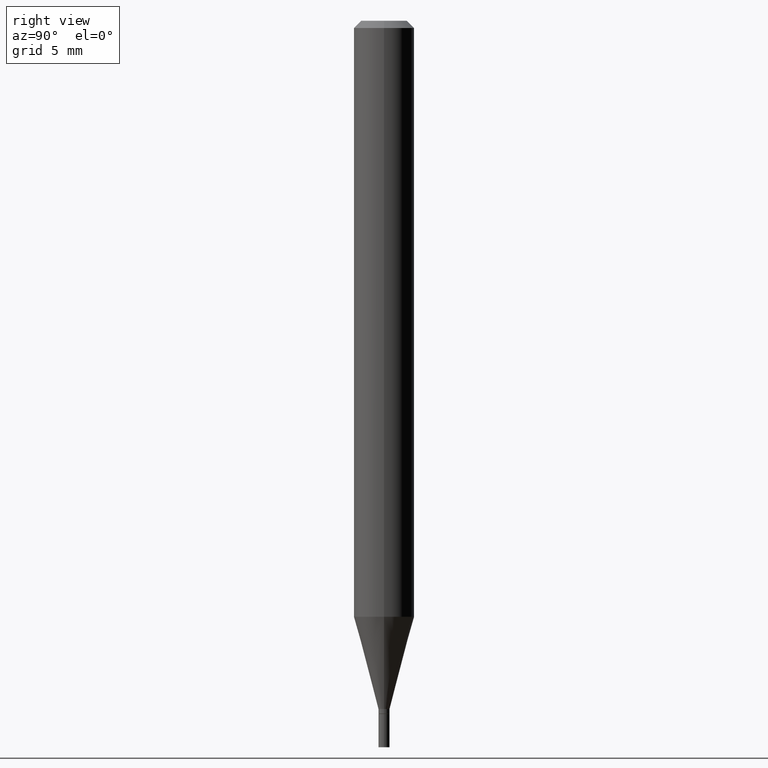
[diagram: clean part render]
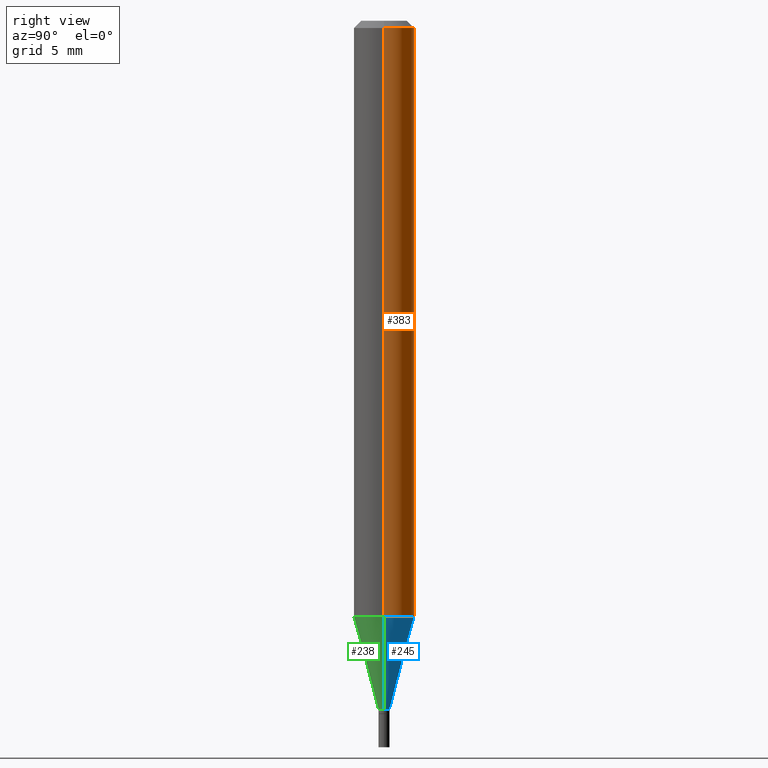
[diagram: same view with three faces highlighted in distinct colors, each labeled with its STEP entity id]
A machine part, right view with three faces highlighted in distinct colors.
Their STEP definitions:

[orange] entity #383 — the highlighted cylindrical surface (edge-blend (fillet) strip) has radius 1.5875 mm, axis along (-0, 0, 1).
#30 = CARTESIAN_POINT ( 'NONE',  ( 3.668203209277705088E-31, -5.237222008264718399E-17, -0.01499999999999999944 ) ) ;
#64 = DIRECTION ( 'NONE',  ( -2.445468806185136597E-29, 3.491481338843145583E-15, 1.000000000000000000 ) ) ;
#72 = CARTESIAN_POINT ( 'NONE',  ( 0.06249999999999997918, -4.733280476589200707E-15, -1.230665408813987893 ) ) ;
#78 = EDGE_CURVE ( 'NONE', #253, #317, #281, .T. ) ;
#82 = EDGE_CURVE ( 'NONE', #317, #109, #379, .T. ) ;
#98 = ORIENTED_EDGE ( 'NONE', *, *, #101, .F. ) ;
#101 = EDGE_CURVE ( 'NONE', #253, #363, #414, .T. ) ;
#109 = VERTEX_POINT ( 'NONE', #419 ) ;
#117 = AXIS2_PLACEMENT_3D ( 'NONE', #187, #336, #378 ) ;
#118 = CIRCLE ( 'NONE', #344, 0.06250000000000000000 ) ;
#128 = CARTESIAN_POINT ( 'NONE',  ( 0.06250000000000000000, -4.364351673553916694E-16, 3.047610484872459871E-30 ) ) ;
#140 = VECTOR ( 'NONE', #313, 39.37007874015748143 ) ;
#141 = CARTESIAN_POINT ( 'NONE',  ( -0.06249999999999997918, -3.852756099383747210E-15, -1.230665408813987893 ) ) ;
#149 = CARTESIAN_POINT ( 'NONE',  ( 0.06250000000000000000, -4.888073874380388472E-16, -0.01499999999999999944 ) ) ;
#160 = DIRECTION ( 'NONE',  ( 1.000000000000000000, -6.982962677686266711E-15, 4.876176775795935793E-29 ) ) ;
#171 = ORIENTED_EDGE ( 'NONE', *, *, #82, .T. ) ;
#176 = DIRECTION ( 'NONE',  ( 1.000000000000000000, -6.982962677686266711E-15, 0.000000000000000000 ) ) ;
#187 = CARTESIAN_POINT ( 'NONE',  ( 3.009553868105685827E-29, -4.296845309233809826E-15, -1.230665408813987893 ) ) ;
#204 = ORIENTED_EDGE ( 'NONE', *, *, #298, .F. ) ;
#242 = CYLINDRICAL_SURFACE ( 'NONE', #412, 0.06250000000000000000 ) ;
#253 = VERTEX_POINT ( 'NONE', #72 ) ;
#281 = CIRCLE ( 'NONE', #117, 0.06250000000000000000 ) ;
#298 = EDGE_CURVE ( 'NONE', #363, #109, #118, .T. ) ;
#306 = CARTESIAN_POINT ( 'NONE',  ( 0.000000000000000000, 0.000000000000000000, 0.000000000000000000 ) ) ;
#313 = DIRECTION ( 'NONE',  ( -2.445468806185136877E-29, 3.491481338843145188E-15, 1.000000000000000000 ) ) ;
#317 = VERTEX_POINT ( 'NONE', #141 ) ;
#336 = DIRECTION ( 'NONE',  ( -2.445468806185136597E-29, 3.491481338843145583E-15, 1.000000000000000000 ) ) ;
#341 = VECTOR ( 'NONE', #381, 39.37007874015748143 ) ;
#344 = AXIS2_PLACEMENT_3D ( 'NONE', #30, #64, #176 ) ;
#350 = FACE_OUTER_BOUND ( 'NONE', #426, .T. ) ;
#363 = VERTEX_POINT ( 'NONE', #149 ) ;
#377 = DIRECTION ( 'NONE',  ( -2.445468806185136597E-29, 3.491481338843145583E-15, 1.000000000000000000 ) ) ;
#378 = DIRECTION ( 'NONE',  ( 1.000000000000000000, -6.982962677686262766E-15, 0.000000000000000000 ) ) ;
#379 = LINE ( 'NONE', #446, #140 ) ;
#381 = DIRECTION ( 'NONE',  ( -2.445468806185136877E-29, 3.491481338843145188E-15, 1.000000000000000000 ) ) ;
#383 = ADVANCED_FACE ( 'NONE', ( #350 ), #242, .T. ) ;
#412 = AXIS2_PLACEMENT_3D ( 'NONE', #306, #377, #160 ) ;
#414 = LINE ( 'NONE', #128, #341 ) ;
#419 = CARTESIAN_POINT ( 'NONE',  ( -0.06250000000000000000, -1.730519554808165837E-15, -0.01499999999999999944 ) ) ;
#426 = EDGE_LOOP ( 'NONE', ( #465, #171, #204, #98 ) ) ;
#446 = CARTESIAN_POINT ( 'NONE',  ( -0.06250000000000000000, 4.440892098500626162E-16, -3.074334431409316114E-30 ) ) ;
#465 = ORIENTED_EDGE ( 'NONE', *, *, #78, .T. ) ;

[blue] entity #245 — the highlighted conical surface has half-angle 15 deg.
#5 = EDGE_LOOP ( 'NONE', ( #283, #289, #29, #328 ) ) ;
#8 = LINE ( 'NONE', #223, #38 ) ;
#29 = ORIENTED_EDGE ( 'NONE', *, *, #78, .F. ) ;
#35 = CARTESIAN_POINT ( 'NONE',  ( -0.01149999999999992001, -4.366219333633723973E-15, -1.421000000000000263 ) ) ;
#38 = VECTOR ( 'NONE', #81, 39.37007874015748143 ) ;
#47 = EDGE_CURVE ( 'NONE', #65, #253, #8, .T. ) ;
#54 = DIRECTION ( 'NONE',  ( -0.2588190451025216277, 5.211531920934551831E-15, 0.9659258262890679791 ) ) ;
#65 = VERTEX_POINT ( 'NONE', #371 ) ;
#72 = CARTESIAN_POINT ( 'NONE',  ( 0.06249999999999997918, -4.733280476589200707E-15, -1.230665408813987893 ) ) ;
#78 = EDGE_CURVE ( 'NONE', #253, #317, #281, .T. ) ;
#81 = DIRECTION ( 'NONE',  ( 0.2588190451025216277, 1.565188264969619995E-15, 0.9659258262890679791 ) ) ;
#89 = LINE ( 'NONE', #235, #105 ) ;
#105 = VECTOR ( 'NONE', #54, 39.37007874015748143 ) ;
#117 = AXIS2_PLACEMENT_3D ( 'NONE', #187, #336, #378 ) ;
#124 = CIRCLE ( 'NONE', #392, 0.01149999999999992001 ) ;
#141 = CARTESIAN_POINT ( 'NONE',  ( -0.06249999999999997918, -3.852756099383747210E-15, -1.230665408813987893 ) ) ;
#142 = CONICAL_SURFACE ( 'NONE', #244, 0.01149999999999992001, 0.2617993877991502960 ) ;
#187 = CARTESIAN_POINT ( 'NONE',  ( 3.009553868105685827E-29, -4.296845309233809826E-15, -1.230665408813987893 ) ) ;
#206 = EDGE_CURVE ( 'NONE', #65, #222, #124, .T. ) ;
#209 = DIRECTION ( 'NONE',  ( -2.445468806185136597E-29, 3.491481338843145583E-15, 1.000000000000000000 ) ) ;
#221 = DIRECTION ( 'NONE',  ( 1.000000000000000000, -6.982962677686254878E-15, 0.000000000000000000 ) ) ;
#222 = VERTEX_POINT ( 'NONE', #35 ) ;
#223 = CARTESIAN_POINT ( 'NONE',  ( 0.01149999999999992001, -5.041699053289501888E-15, -1.421000000000000263 ) ) ;
#235 = CARTESIAN_POINT ( 'NONE',  ( -0.01149999999999992001, -4.879682567883699947E-15, -1.421000000000000263 ) ) ;
#244 = AXIS2_PLACEMENT_3D ( 'NONE', #422, #393, #248 ) ;
#245 = ADVANCED_FACE ( 'NONE', ( #361 ), #142, .T. ) ;
#248 = DIRECTION ( 'NONE',  ( 1.000000000000000000, -6.982962677686254878E-15, 0.000000000000000000 ) ) ;
#253 = VERTEX_POINT ( 'NONE', #72 ) ;
#281 = CIRCLE ( 'NONE', #117, 0.06250000000000000000 ) ;
#283 = ORIENTED_EDGE ( 'NONE', *, *, #206, .T. ) ;
#289 = ORIENTED_EDGE ( 'NONE', *, *, #461, .T. ) ;
#305 = CARTESIAN_POINT ( 'NONE',  ( 3.475011173589079817E-29, -4.961394982496111147E-15, -1.421000000000000263 ) ) ;
#317 = VERTEX_POINT ( 'NONE', #141 ) ;
#328 = ORIENTED_EDGE ( 'NONE', *, *, #47, .F. ) ;
#336 = DIRECTION ( 'NONE',  ( -2.445468806185136597E-29, 3.491481338843145583E-15, 1.000000000000000000 ) ) ;
#361 = FACE_OUTER_BOUND ( 'NONE', #5, .T. ) ;
#371 = CARTESIAN_POINT ( 'NONE',  ( 0.01149999999999992001, -5.041699053289501888E-15, -1.421000000000000263 ) ) ;
#378 = DIRECTION ( 'NONE',  ( 1.000000000000000000, -6.982962677686262766E-15, 0.000000000000000000 ) ) ;
#392 = AXIS2_PLACEMENT_3D ( 'NONE', #305, #209, #221 ) ;
#393 = DIRECTION ( 'NONE',  ( -2.445468806185136597E-29, 3.491481338843145583E-15, 1.000000000000000000 ) ) ;
#422 = CARTESIAN_POINT ( 'NONE',  ( 3.475011173589079817E-29, -4.961394982496111147E-15, -1.421000000000000263 ) ) ;
#461 = EDGE_CURVE ( 'NONE', #222, #317, #89, .T. ) ;

[green] entity #238 — the highlighted conical surface has half-angle 15 deg.
#3 = CARTESIAN_POINT ( 'NONE',  ( 3.009553868105685827E-29, -4.296845309233809826E-15, -1.230665408813987893 ) ) ;
#8 = LINE ( 'NONE', #223, #38 ) ;
#11 = DIRECTION ( 'NONE',  ( 1.000000000000000000, -6.982962677686254878E-15, 0.000000000000000000 ) ) ;
#27 = CIRCLE ( 'NONE', #157, 0.01149999999999992001 ) ;
#35 = CARTESIAN_POINT ( 'NONE',  ( -0.01149999999999992001, -4.366219333633723973E-15, -1.421000000000000263 ) ) ;
#38 = VECTOR ( 'NONE', #81, 39.37007874015748143 ) ;
#43 = ORIENTED_EDGE ( 'NONE', *, *, #232, .F. ) ;
#44 = CONICAL_SURFACE ( 'NONE', #201, 0.01149999999999992001, 0.2617993877991502960 ) ;
#47 = EDGE_CURVE ( 'NONE', #65, #253, #8, .T. ) ;
#54 = DIRECTION ( 'NONE',  ( -0.2588190451025216277, 5.211531920934551831E-15, 0.9659258262890679791 ) ) ;
#65 = VERTEX_POINT ( 'NONE', #371 ) ;
#72 = CARTESIAN_POINT ( 'NONE',  ( 0.06249999999999997918, -4.733280476589200707E-15, -1.230665408813987893 ) ) ;
#81 = DIRECTION ( 'NONE',  ( 0.2588190451025216277, 1.565188264969619995E-15, 0.9659258262890679791 ) ) ;
#89 = LINE ( 'NONE', #235, #105 ) ;
#100 = ORIENTED_EDGE ( 'NONE', *, *, #461, .F. ) ;
#105 = VECTOR ( 'NONE', #54, 39.37007874015748143 ) ;
#127 = ORIENTED_EDGE ( 'NONE', *, *, #47, .T. ) ;
#141 = CARTESIAN_POINT ( 'NONE',  ( -0.06249999999999997918, -3.852756099383747210E-15, -1.230665408813987893 ) ) ;
#146 = DIRECTION ( 'NONE',  ( -2.445468806185136597E-29, 3.491481338843145583E-15, 1.000000000000000000 ) ) ;
#148 = ORIENTED_EDGE ( 'NONE', *, *, #398, .T. ) ;
#157 = AXIS2_PLACEMENT_3D ( 'NONE', #430, #389, #290 ) ;
#165 = CIRCLE ( 'NONE', #180, 0.06250000000000000000 ) ;
#180 = AXIS2_PLACEMENT_3D ( 'NONE', #3, #146, #213 ) ;
#201 = AXIS2_PLACEMENT_3D ( 'NONE', #292, #440, #11 ) ;
#213 = DIRECTION ( 'NONE',  ( 1.000000000000000000, -6.982962677686262766E-15, 0.000000000000000000 ) ) ;
#222 = VERTEX_POINT ( 'NONE', #35 ) ;
#223 = CARTESIAN_POINT ( 'NONE',  ( 0.01149999999999992001, -5.041699053289501888E-15, -1.421000000000000263 ) ) ;
#232 = EDGE_CURVE ( 'NONE', #317, #253, #165, .T. ) ;
#235 = CARTESIAN_POINT ( 'NONE',  ( -0.01149999999999992001, -4.879682567883699947E-15, -1.421000000000000263 ) ) ;
#238 = ADVANCED_FACE ( 'NONE', ( #296 ), #44, .T. ) ;
#253 = VERTEX_POINT ( 'NONE', #72 ) ;
#290 = DIRECTION ( 'NONE',  ( 1.000000000000000000, -6.982962677686254878E-15, 0.000000000000000000 ) ) ;
#292 = CARTESIAN_POINT ( 'NONE',  ( 3.475011173589079817E-29, -4.961394982496111147E-15, -1.421000000000000263 ) ) ;
#296 = FACE_OUTER_BOUND ( 'NONE', #353, .T. ) ;
#317 = VERTEX_POINT ( 'NONE', #141 ) ;
#353 = EDGE_LOOP ( 'NONE', ( #100, #148, #127, #43 ) ) ;
#371 = CARTESIAN_POINT ( 'NONE',  ( 0.01149999999999992001, -5.041699053289501888E-15, -1.421000000000000263 ) ) ;
#389 = DIRECTION ( 'NONE',  ( -2.445468806185136597E-29, 3.491481338843145583E-15, 1.000000000000000000 ) ) ;
#398 = EDGE_CURVE ( 'NONE', #222, #65, #27, .T. ) ;
#430 = CARTESIAN_POINT ( 'NONE',  ( 3.475011173589079817E-29, -4.961394982496111147E-15, -1.421000000000000263 ) ) ;
#440 = DIRECTION ( 'NONE',  ( -2.445468806185136597E-29, 3.491481338843145583E-15, 1.000000000000000000 ) ) ;
#461 = EDGE_CURVE ( 'NONE', #222, #317, #89, .T. ) ;